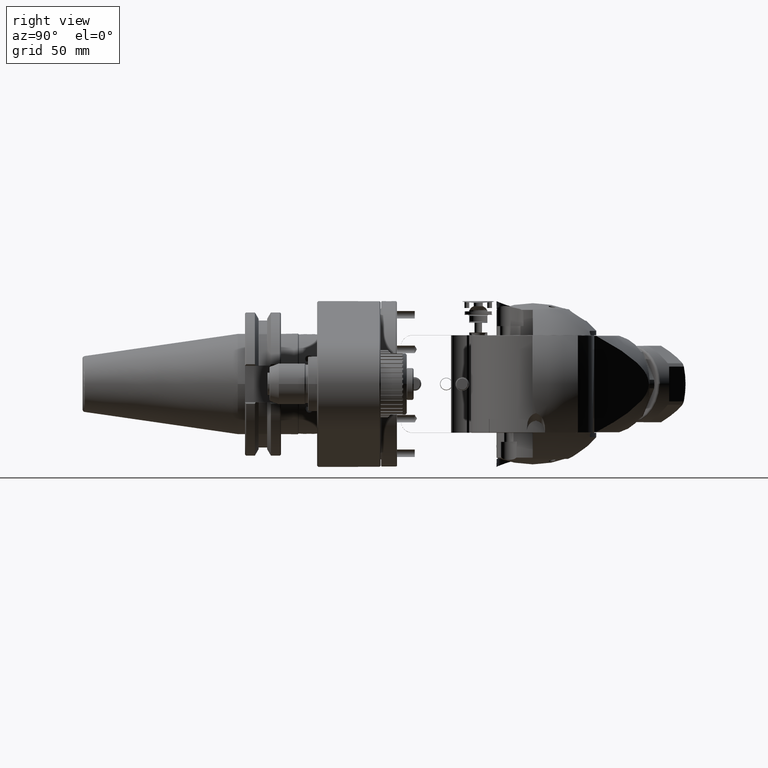
[diagram: clean part render]
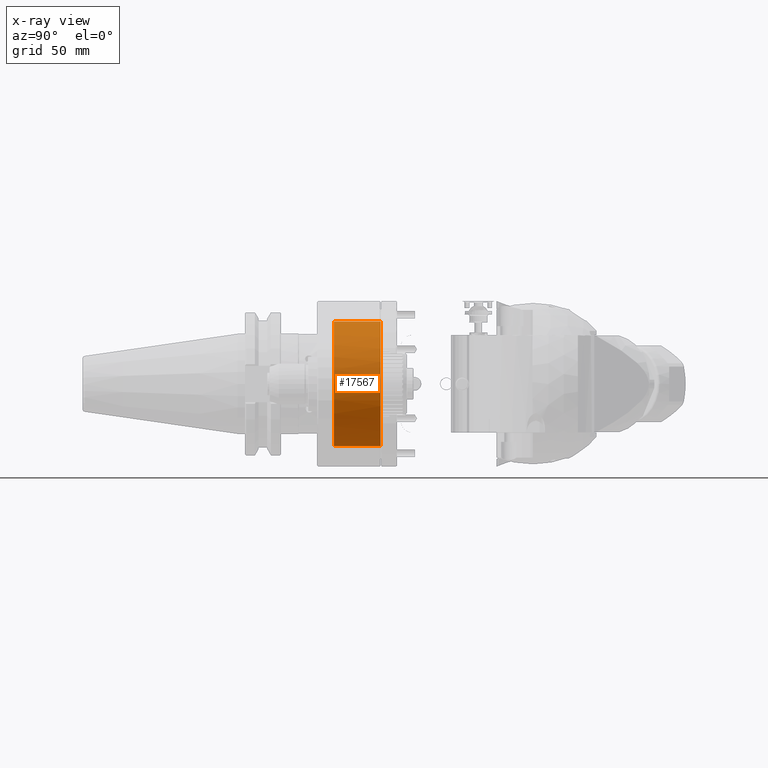
[diagram: x-ray — body ghosted, one internal face saturated and labeled with its STEP entity id]
A machine part, right view, then the same camera in x-ray: the body is ghosted and one INTERNAL B-rep face — a face not visible from any outside direction — is saturated and labeled: STEP entity #17567.
In plain terms, the highlighted cylindrical surface (bore or boss wall) has radius 27.5 mm, axis along (-0, 1, -0).
Its self-contained STEP definition (entity closure, byte-faithful):
#1239=FACE_OUTER_BOUND('',#2344,.T.);
#2344=EDGE_LOOP('',(#12588,#12589,#12590,#12591,#12592));
#3401=CIRCLE('',#18635,27.5);
#3535=CIRCLE('',#18908,27.5);
#3536=CIRCLE('',#18909,27.5);
#4625=LINE('',#29307,#5918);
#5918=VECTOR('',#21604,27.5);
#7367=VERTEX_POINT('',#27703);
#7544=VERTEX_POINT('',#29306);
#7545=VERTEX_POINT('',#29308);
#9164=EDGE_CURVE('',#7367,#7367,#3401,.T.);
#9466=EDGE_CURVE('',#7367,#7544,#4625,.T.);
#9467=EDGE_CURVE('',#7545,#7544,#3535,.T.);
#9468=EDGE_CURVE('',#7544,#7545,#3536,.T.);
#12588=ORIENTED_EDGE('',*,*,#9164,.T.);
#12589=ORIENTED_EDGE('',*,*,#9466,.T.);
#12590=ORIENTED_EDGE('',*,*,#9467,.F.);
#12591=ORIENTED_EDGE('',*,*,#9468,.F.);
#12592=ORIENTED_EDGE('',*,*,#9466,.F.);
#17152=CYLINDRICAL_SURFACE('',#18907,27.5);
#17567=ADVANCED_FACE('',(#1239),#17152,.T.);
#18635=AXIS2_PLACEMENT_3D('',#27704,#20920,#20921);
#18907=AXIS2_PLACEMENT_3D('',#29305,#21602,#21603);
#18908=AXIS2_PLACEMENT_3D('',#29309,#21605,#21606);
#18909=AXIS2_PLACEMENT_3D('',#29310,#21607,#21608);
#20920=DIRECTION('center_axis',(0.,-1.,0.));
#20921=DIRECTION('ref_axis',(-1.,0.,0.));
#21602=DIRECTION('center_axis',(0.,1.,0.));
#21603=DIRECTION('ref_axis',(1.,0.,0.));
#21604=DIRECTION('',(0.,-1.,0.));
#21605=DIRECTION('center_axis',(0.,-1.,0.));
#21606=DIRECTION('ref_axis',(-1.,0.,0.));
#21607=DIRECTION('center_axis',(0.,-1.,0.));
#21608=DIRECTION('ref_axis',(-1.,0.,0.));
#27703=CARTESIAN_POINT('',(-27.5,8.88178419700125E-15,3.36777869765522E-15));
#27704=CARTESIAN_POINT('Origin',(0.,1.06581410364E-14,0.));
#29305=CARTESIAN_POINT('Origin',(0.,-25.295,0.));
#29306=CARTESIAN_POINT('',(-27.5,-20.70001362723,3.36777869765522E-15));
#29307=CARTESIAN_POINT('',(-27.5,-25.295,3.36777869765522E-15));
#29308=CARTESIAN_POINT('',(-8.92014639500445E-13,-20.7000136272296,27.5000000000009));
#29309=CARTESIAN_POINT('Origin',(0.,-20.70001362723,0.));
#29310=CARTESIAN_POINT('Origin',(0.,-20.70001362723,0.));